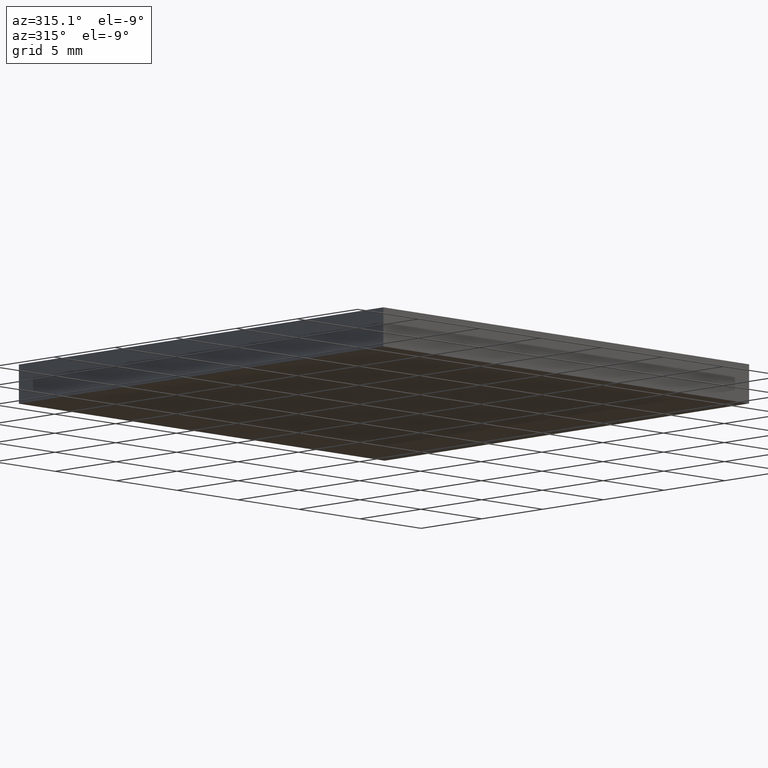
[diagram: clean part render]
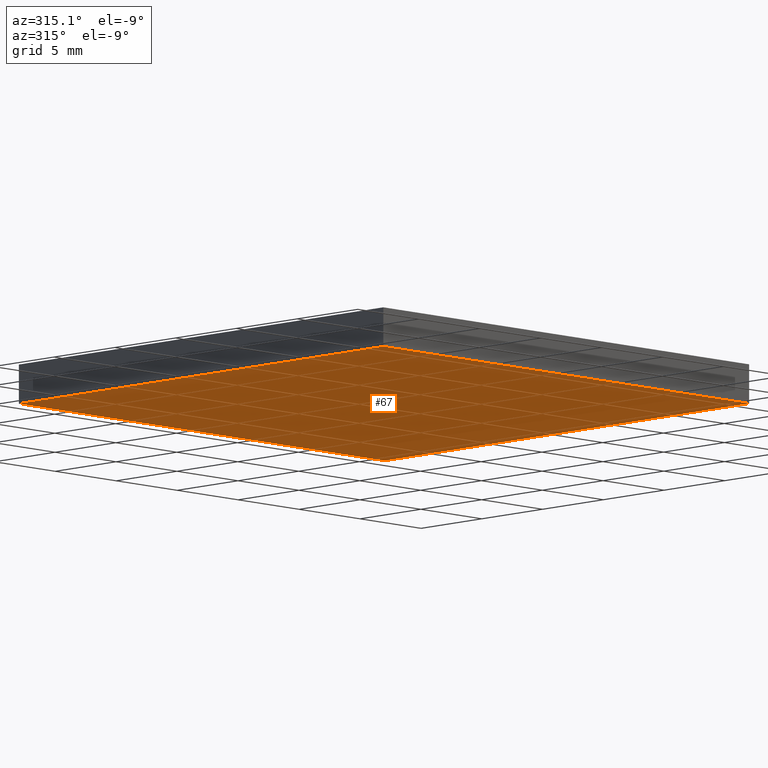
[diagram: same view with one face highlighted and labeled with its STEP entity id]
A machine part, auxiliary view. The second image highlights one B-rep face of the part: STEP entity #67.
In plain terms, the highlighted planar face has unit normal (-0, 0, 1).
Its self-contained STEP definition (entity closure, byte-faithful):
#2 = DIRECTION ( 'NONE',  ( -1.000000000000000000, -4.625929269271485900E-016, -0.0000000000000000000 ) ) ;
#6 = EDGE_CURVE ( 'NONE', #91, #160, #127, .T. ) ;
#16 = CARTESIAN_POINT ( 'NONE',  ( 93.61498394228370000, 46.56324183452659300, 0.0000000000000000000 ) ) ;
#24 = ORIENTED_EDGE ( 'NONE', *, *, #6, .F. ) ;
#45 = DIRECTION ( 'NONE',  ( -4.625929269271483900E-016, 1.000000000000000000, -0.0000000000000000000 ) ) ;
#49 = ORIENTED_EDGE ( 'NONE', *, *, #100, .F. ) ;
#67 = ADVANCED_FACE ( 'NONE', ( #72 ), #78, .F. ) ;
#70 = CARTESIAN_POINT ( 'NONE',  ( 93.61498394228370000, 46.56324183452659300, 0.0000000000000000000 ) ) ;
#71 = DIRECTION ( 'NONE',  ( 4.625929269271485900E-016, -1.000000000000000000, 0.0000000000000000000 ) ) ;
#72 = FACE_OUTER_BOUND ( 'NONE', #186, .T. ) ;
#76 = CARTESIAN_POINT ( 'NONE',  ( 93.61498394228368600, 76.56324183452659300, 0.0000000000000000000 ) ) ;
#78 = PLANE ( 'NONE',  #98 ) ;
#80 = LINE ( 'NONE', #122, #83 ) ;
#83 = VECTOR ( 'NONE', #45, 1000.000000000000000 ) ;
#91 = VERTEX_POINT ( 'NONE', #16 ) ;
#93 = EDGE_CURVE ( 'NONE', #128, #105, #116, .T. ) ;
#98 = AXIS2_PLACEMENT_3D ( 'NONE', #106, #180, #135 ) ;
#100 = EDGE_CURVE ( 'NONE', #160, #128, #80, .T. ) ;
#105 = VERTEX_POINT ( 'NONE', #107 ) ;
#106 = CARTESIAN_POINT ( 'NONE',  ( 0.0000000000000000000, 0.0000000000000000000, 0.0000000000000000000 ) ) ;
#107 = CARTESIAN_POINT ( 'NONE',  ( 93.61498394228368600, 76.56324183452659300, 0.0000000000000000000 ) ) ;
#108 = ORIENTED_EDGE ( 'NONE', *, *, #137, .F. ) ;
#116 = LINE ( 'NONE', #76, #121 ) ;
#119 = CARTESIAN_POINT ( 'NONE',  ( 93.61498394228368600, 76.56324183452659300, 0.0000000000000000000 ) ) ;
#121 = VECTOR ( 'NONE', #2, 1000.000000000000000 ) ;
#122 = CARTESIAN_POINT ( 'NONE',  ( 123.6149839422836900, 76.56324183452660700, 0.0000000000000000000 ) ) ;
#127 = LINE ( 'NONE', #70, #187 ) ;
#128 = VERTEX_POINT ( 'NONE', #151 ) ;
#135 = DIRECTION ( 'NONE',  ( 1.000000000000000000, 0.0000000000000000000, 0.0000000000000000000 ) ) ;
#137 = EDGE_CURVE ( 'NONE', #105, #91, #167, .T. ) ;
#151 = CARTESIAN_POINT ( 'NONE',  ( 123.6149839422836900, 76.56324183452660700, 0.0000000000000000000 ) ) ;
#152 = ORIENTED_EDGE ( 'NONE', *, *, #93, .F. ) ;
#155 = VECTOR ( 'NONE', #71, 1000.000000000000000 ) ;
#159 = DIRECTION ( 'NONE',  ( 1.000000000000000000, 0.0000000000000000000, 0.0000000000000000000 ) ) ;
#160 = VERTEX_POINT ( 'NONE', #182 ) ;
#167 = LINE ( 'NONE', #119, #155 ) ;
#180 = DIRECTION ( 'NONE',  ( -0.0000000000000000000, 0.0000000000000000000, 1.000000000000000000 ) ) ;
#182 = CARTESIAN_POINT ( 'NONE',  ( 123.6149839422836900, 46.56324183452659300, 0.0000000000000000000 ) ) ;
#186 = EDGE_LOOP ( 'NONE', ( #108, #152, #49, #24 ) ) ;
#187 = VECTOR ( 'NONE', #159, 1000.000000000000000 ) ;